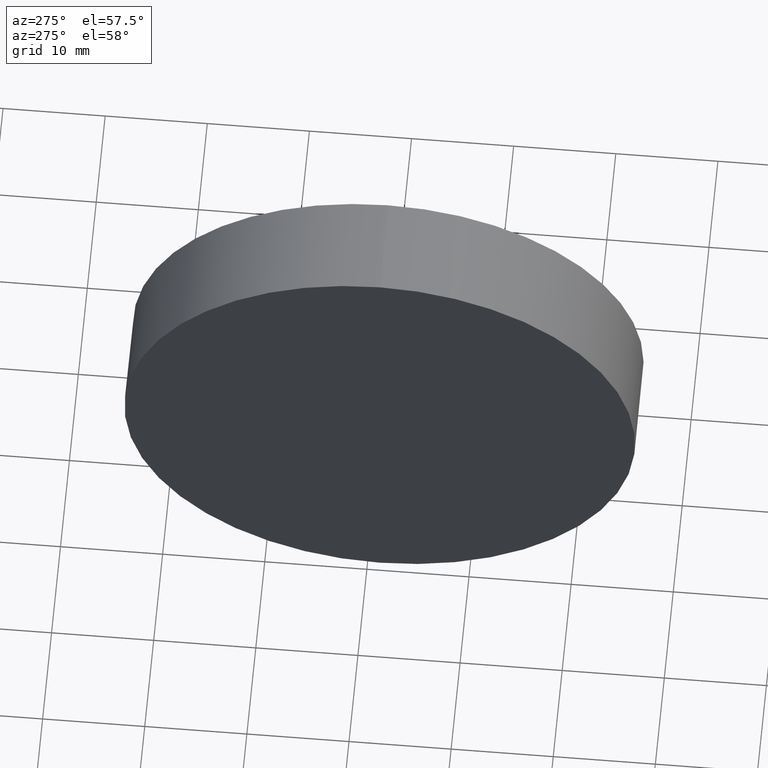
[diagram: clean part render]
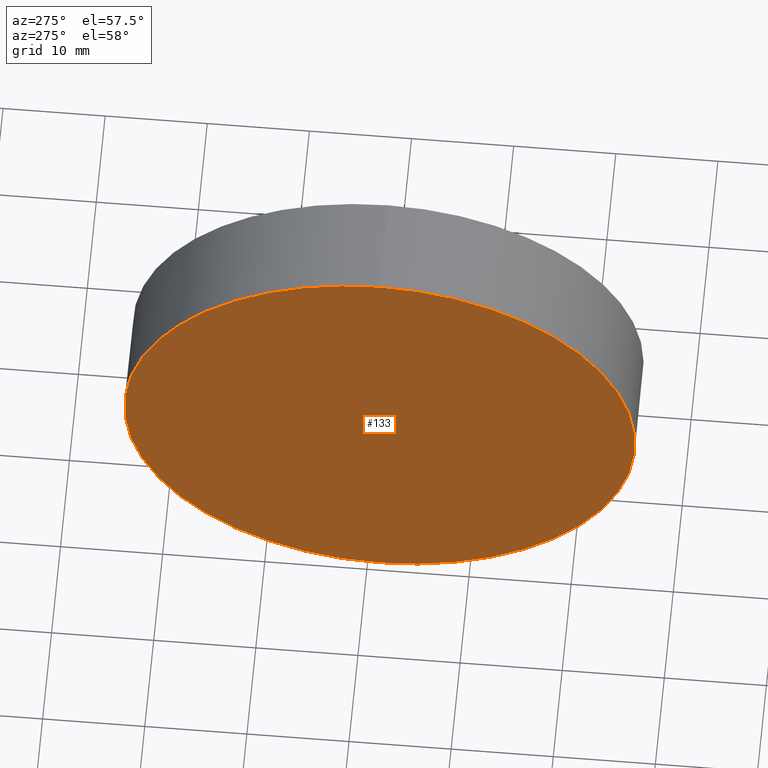
[diagram: same view with one face highlighted and labeled with its STEP entity id]
A machine part, auxiliary view. The second image highlights one B-rep face of the part: STEP entity #133.
In plain terms, the highlighted planar face has unit normal (1, 0, 0).
Its self-contained STEP definition (entity closure, byte-faithful):
#14 = DIRECTION ( 'NONE',  ( 0.0000000000000000000, 0.0000000000000000000, 1.000000000000000000 ) ) ;
#36 = ORIENTED_EDGE ( 'NONE', *, *, #104, .T. ) ;
#37 = CARTESIAN_POINT ( 'NONE',  ( 230.1853110698390300, 138.7560422467448700, 0.0000000000000000000 ) ) ;
#47 = AXIS2_PLACEMENT_3D ( 'NONE', #81, #112, #92 ) ;
#55 = PLANE ( 'NONE',  #182 ) ;
#56 = DIRECTION ( 'NONE',  ( 0.0000000000000000000, 0.0000000000000000000, -1.000000000000000000 ) ) ;
#74 = EDGE_LOOP ( 'NONE', ( #95, #36 ) ) ;
#81 = CARTESIAN_POINT ( 'NONE',  ( 230.1853110698390300, 138.7560422467448700, 0.0000000000000000000 ) ) ;
#85 = CARTESIAN_POINT ( 'NONE',  ( 230.1853110698390300, 138.7560422467448700, 24.99999999999999300 ) ) ;
#92 = DIRECTION ( 'NONE',  ( 0.0000000000000000000, 0.0000000000000000000, 1.000000000000000000 ) ) ;
#95 = ORIENTED_EDGE ( 'NONE', *, *, #126, .T. ) ;
#98 = CARTESIAN_POINT ( 'NONE',  ( 230.1853110698390300, 138.7560422467448700, 0.0000000000000000000 ) ) ;
#104 = EDGE_CURVE ( 'NONE', #183, #122, #108, .T. ) ;
#108 = CIRCLE ( 'NONE', #184, 24.99999999999999300 ) ;
#112 = DIRECTION ( 'NONE',  ( -1.000000000000000000, -0.0000000000000000000, -0.0000000000000000000 ) ) ;
#119 = CARTESIAN_POINT ( 'NONE',  ( 230.1853110698390300, 138.7560422467448700, -24.99999999999999300 ) ) ;
#122 = VERTEX_POINT ( 'NONE', #85 ) ;
#126 = EDGE_CURVE ( 'NONE', #122, #183, #181, .T. ) ;
#133 = ADVANCED_FACE ( 'NONE', ( #186 ), #55, .F. ) ;
#141 = DIRECTION ( 'NONE',  ( -1.000000000000000000, -0.0000000000000000000, -0.0000000000000000000 ) ) ;
#174 = DIRECTION ( 'NONE',  ( 1.000000000000000000, 0.0000000000000000000, 0.0000000000000000000 ) ) ;
#181 = CIRCLE ( 'NONE', #47, 24.99999999999999300 ) ;
#182 = AXIS2_PLACEMENT_3D ( 'NONE', #37, #174, #56 ) ;
#183 = VERTEX_POINT ( 'NONE', #119 ) ;
#184 = AXIS2_PLACEMENT_3D ( 'NONE', #98, #141, #14 ) ;
#186 = FACE_OUTER_BOUND ( 'NONE', #74, .T. ) ;